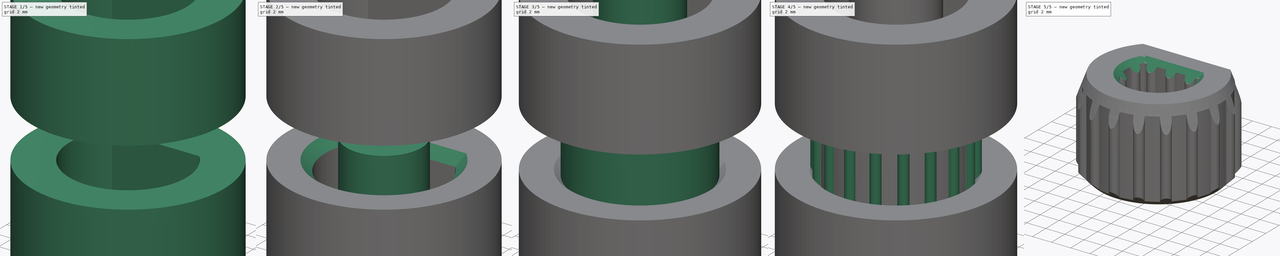
[diagram: build sequence overview — one tinted view per stage of 5, left to right]
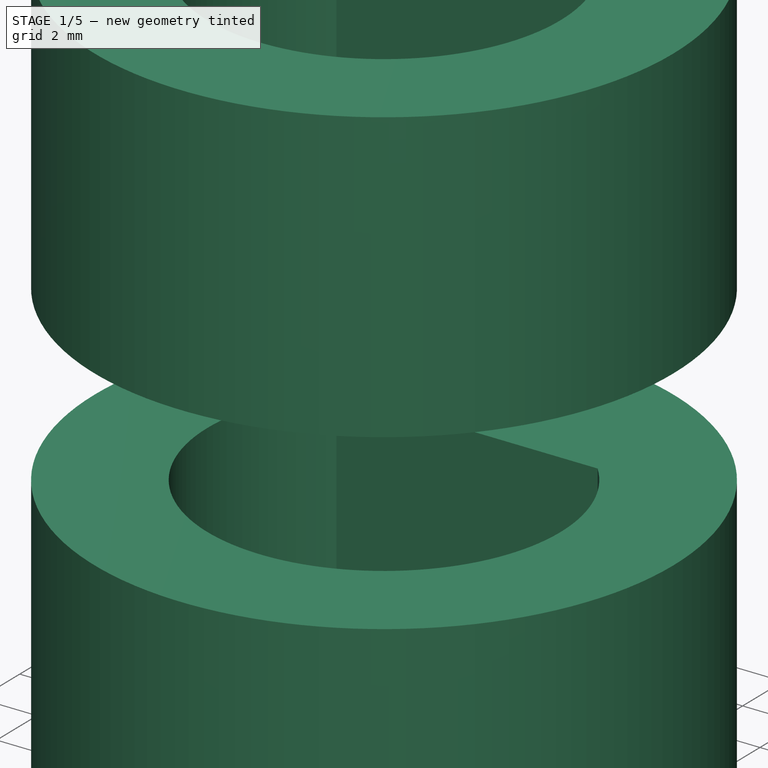
[diagram: stage 1 of 5 — iso view after this stage's code; geometry added in this stage tinted green]
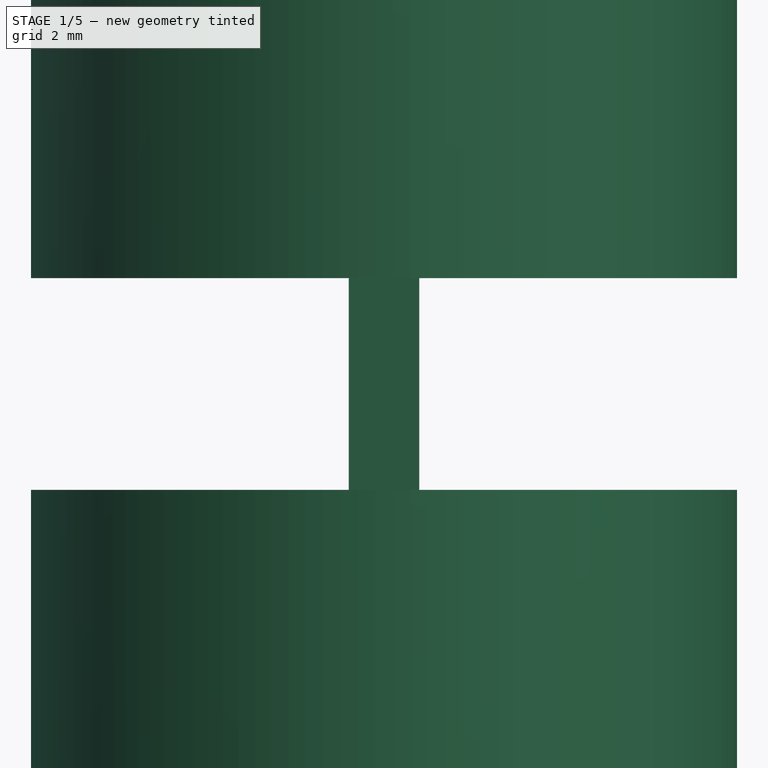
[diagram: stage 1 of 5 — front view after this stage's code; geometry added in this stage tinted green]
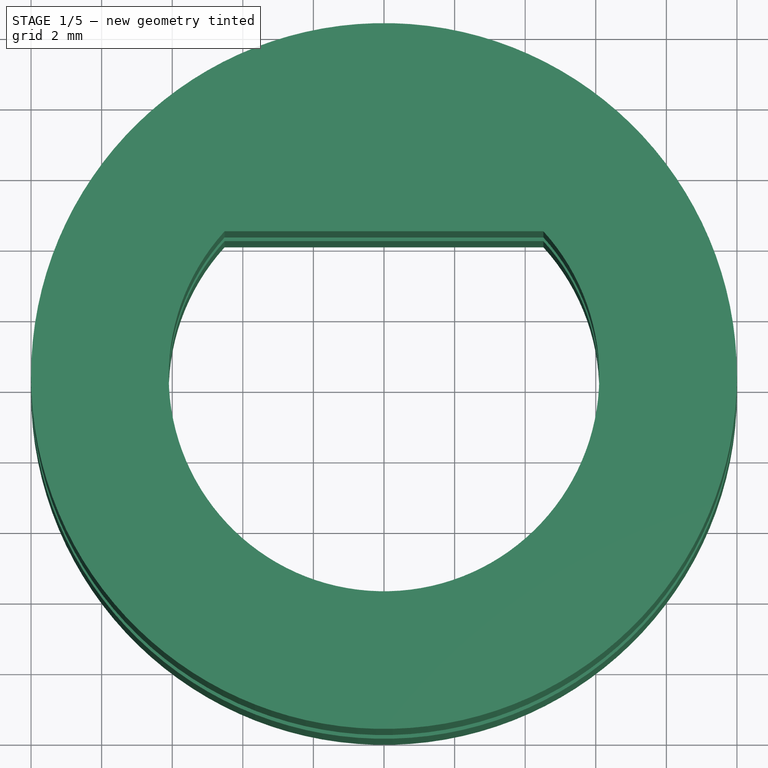
[diagram: stage 1 of 5 — top view after this stage's code; geometry added in this stage tinted green]
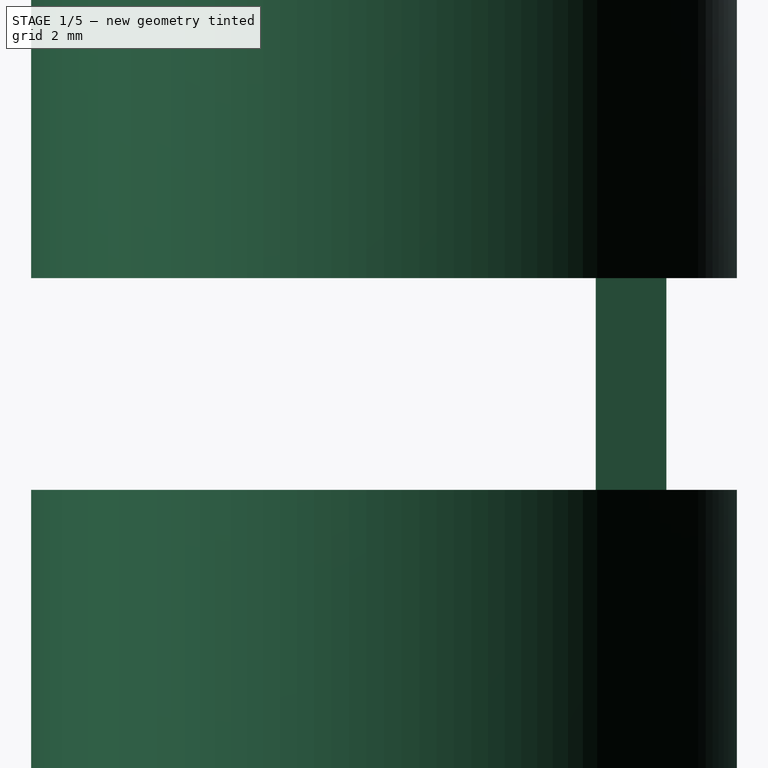
[diagram: stage 1 of 5 — right view after this stage's code; geometry added in this stage tinted green]
FCSTD DOCUMENT  (FreeCAD 1.0R39319 (Git))
Label: PLASTIC-TEK2-KNOB-INTERFACE
License: All rights reserved
LicenseURL: https://en.wikipedia.org/wiki/All_rights_reserved
objects: Sketcher::SketchObject×10, PartDesign::Pad×9, PartDesign::Plane×5, PartDesign::Chamfer×3, PartDesign::Body×3, PartDesign::CoordinateSystem×3, PartDesign::Boolean×2, PartDesign::Pocket×1
note: 74 computed .brp shape members not serialized (recipe doc carries the construction recipe); baked Part::Feature solids carry a one-line shape summary decoded from their .brp

FEATURE [PartDesign::Plane] DatumPlane002
  AttachmentOffset = pos=(0,0,2.25) rot=(0,0,1;0rad)
  AttachmentSupport = -> [XY_Plane002]
  Length = 60
  MapMode = 5
  Placement = pos=(0,0,2.25) rot=(0,0,1;0rad)
  ResizeMode = 0
  Width = 60
FEATURE [Sketcher::SketchObject] Sketch008
  ArcFitTolerance = 0
  AttachmentSupport = -> [DatumPlane002]
  FullyConstrained = true
  MakeInternals = false
  MapMode = 5
  Placement = pos=(0,0,2.25) rot=(0,0,1;0rad)
  sketch-geometry (3):
    g0: ArcOfCircle CenterX=0 CenterY=0 CenterZ=0 NormalX=0 NormalY=0 NormalZ=1 AngleXU=0 Radius=6.1 StartAngle=2.40451 EndAngle=7.02027
    g1: LineSegment StartX=-4.51664 StartY=4.1 StartZ=0 EndX=4.51664 EndY=4.1 EndZ=0
    g2: Circle CenterX=0 CenterY=0 CenterZ=0 NormalX=0 NormalY=0 NormalZ=1 AngleXU=0 Radius=10
  constraints (8):
    c: Coincident(g0,g-1)
    c: Horizontal(g1)
    c: Diameter(g0) = 12.2
    c: DistanceY(g-1,g1) = 4.1
    c: Coincident(g0,g1)
    c: Coincident(g0,g1)
    c: Coincident(g0,g2)
    c: Diameter(g2) = 20
FEATURE [PartDesign::Pad] Pad006
  Direction = (0,0,1)
  Length = 10
  Length2 = 10
  Placement = pos=(0,0,2.25) rot=(0,0,1;0rad)
  Profile = -> Sketch008
  ReferenceAxis = -> Sketch008 [N_Axis]
  Suppressed = false
  Type = 0
FEATURE [Sketcher::SketchObject] Sketch009
  ArcFitTolerance = 0
  AttachmentSupport = -> [YZ_Plane002]
  FullyConstrained = true
  MakeInternals = false
  MapMode = 5
  Placement = pos=(0,0,0) rot=(0.57735,0.57735,0.57735;2.0944rad)
  sketch-geometry (5):
    g0: LineSegment StartX=6 StartY=-5 StartZ=0 EndX=6 EndY=5 EndZ=0
    g1: LineSegment StartX=6 StartY=5 StartZ=0 EndX=8 EndY=5 EndZ=0
    g2: LineSegment StartX=8 StartY=5 StartZ=0 EndX=8 EndY=-5 EndZ=0
    g3: LineSegment StartX=8 StartY=-5 StartZ=0 EndX=6 EndY=-5 EndZ=0
    g4: GeomPoint [constr] X=7 Y=0 Z=0
  constraints (13):
    c: Coincident(g0,g1)
    c: Coincident(g1,g2)
    c: Coincident(g2,g3)
    c: Coincident(g3,g0)
    c: Horizontal(g1)
    c: Horizontal(g3)
    c: Vertical(g0)
    c: Vertical(g2)
    c: Symmetric(g1,g0,g4)
    c: PointOnObject(g4,g-1)
    c: DistanceY(g2,g2) = 10
    c: DistanceX(g1,g1) = 2
    c: DistanceX(g-1,g0) = 6
FEATURE [PartDesign::Pad] Pad007
  BaseFeature = -> Pad006
  Direction = (1,0,0)
  Length = 2
  Length2 = 10
  Midplane = true
  Placement = pos=(0,0,2.25) rot=(0,0,1;0rad)
  Profile = -> Sketch009
  ReferenceAxis = -> Sketch009 [N_Axis]
  Suppressed = false
  Type = 0
FEATURE [PartDesign::Plane] DatumPlane004
  AttachmentOffset = pos=(0,0,-3.75) rot=(0,0,1;0rad)
  AttachmentSupport = -> [XY_Plane002]
  Length = 60
  MapMode = 5
  Placement = pos=(0,0,-3.75) rot=(0,0,1;0rad)
  ResizeMode = 0
  Width = 60
FEATURE [Sketcher::SketchObject] Sketch012
  ArcFitTolerance = 0
  AttachmentSupport = -> [DatumPlane004]
  FullyConstrained = true
  MakeInternals = false
  MapMode = 5
  Placement = pos=(0,0,-3.75) rot=(0,0,1;0rad)
  sketch-geometry (3):
    g0: ArcOfCircle CenterX=0 CenterY=0 CenterZ=0 NormalX=0 NormalY=0 NormalZ=1 AngleXU=0 Radius=6.1 StartAngle=2.40451 EndAngle=7.02027
    g1: Circle CenterX=0 CenterY=0 CenterZ=0 NormalX=0 NormalY=0 NormalZ=1 AngleXU=0 Radius=10
    g2: LineSegment StartX=-4.51664 StartY=4.1 StartZ=0 EndX=4.51664 EndY=4.1 EndZ=0
  constraints (8):
    c: Coincident(g0,g-1)
    c: Coincident(g1,g0)
    c: Horizontal(g2)
    c: DistanceY(g0,g2) = 4.1
    c: Diameter(g0) = 12.2
    c: Diameter(g1) = 20
    c: Coincident(g0,g2)
    c: Coincident(g0,g2)
FEATURE [PartDesign::Pad] Pad009
  BaseFeature = -> Pad007
  Direction = (0,0,1)
  Length = 10
  Length2 = 10
  Placement = pos=(0,0,2.25) rot=(0,0,1;0rad)
  Profile = -> Sketch012
  ReferenceAxis = -> Sketch012 [N_Axis]
  Reversed = true
  Suppressed = false
  Type = 0
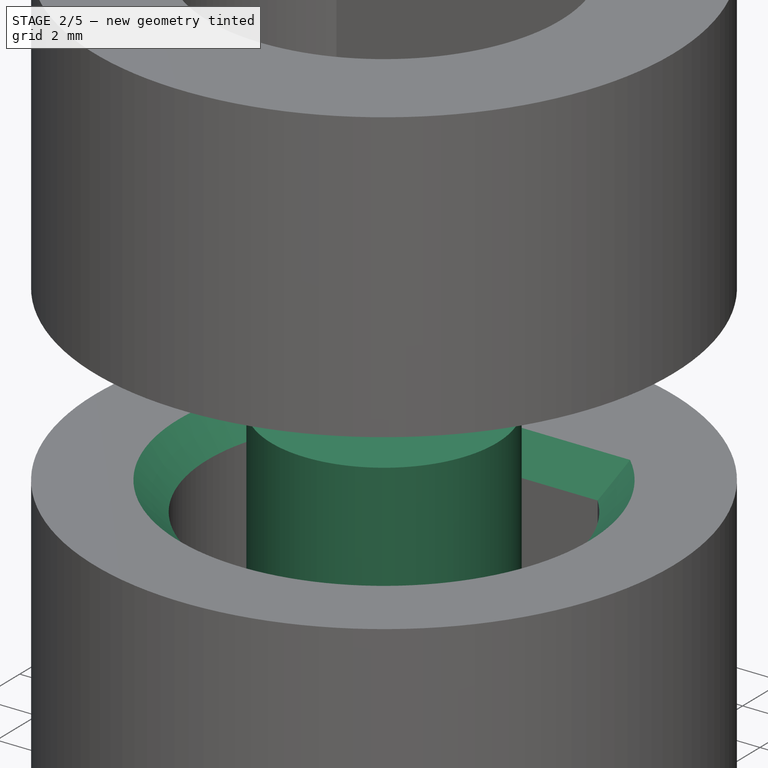
[diagram: stage 2 of 5 — iso view after this stage's code; geometry added in this stage tinted green]
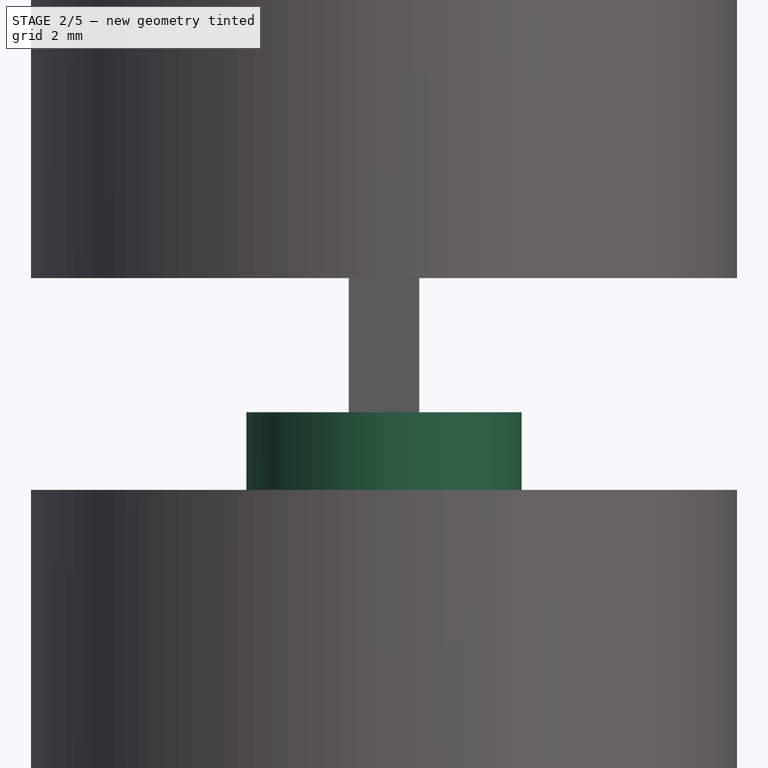
[diagram: stage 2 of 5 — front view after this stage's code; geometry added in this stage tinted green]
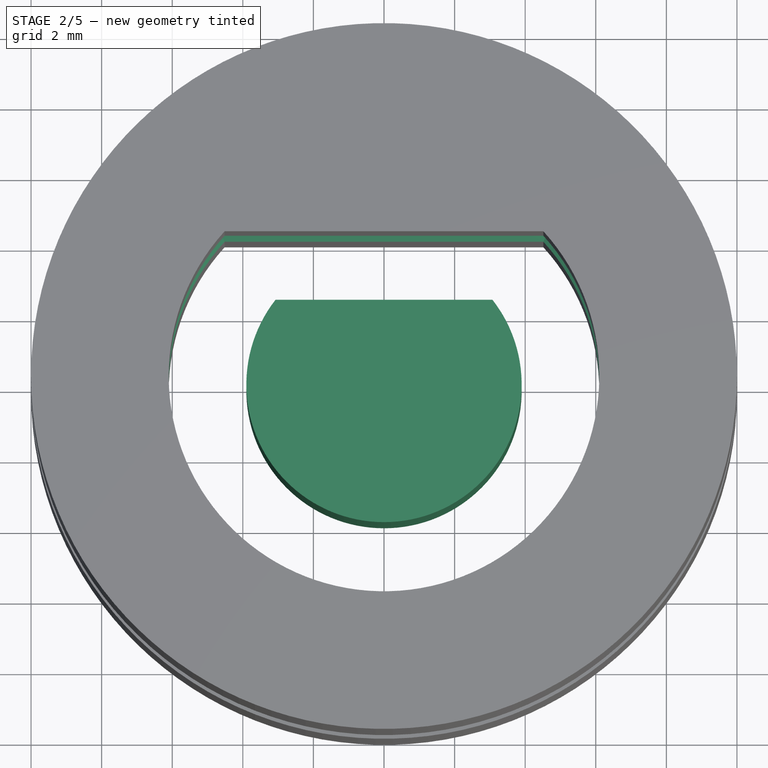
[diagram: stage 2 of 5 — top view after this stage's code; geometry added in this stage tinted green]
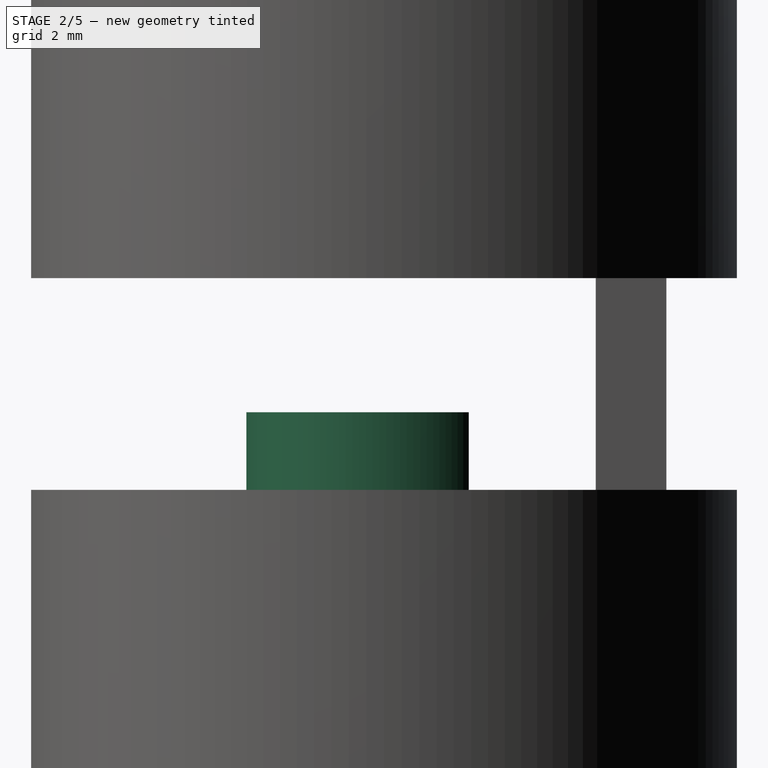
[diagram: stage 2 of 5 — right view after this stage's code; geometry added in this stage tinted green]
FEATURE [PartDesign::Plane] DatumPlane001
  AttachmentOffset = pos=(0,0,-4.75) rot=(0,0,1;0rad)
  AttachmentSupport = -> [XY_Plane]
  Length = 60
  MapMode = 5
  Placement = pos=(0,0,-4.75) rot=(0,0,1;0rad)
  ResizeMode = 0
  Width = 60
FEATURE [PartDesign::Plane] DatumPlane
  AttachmentOffset = pos=(0,0,-1.55) rot=(0,0,1;0rad)
  AttachmentSupport = -> [XY_Plane001]
  Length = 60
  MapMode = 5
  Placement = pos=(0,0,-1.55) rot=(0,0,1;0rad)
  ResizeMode = 0
  Width = 60
FEATURE [Sketcher::SketchObject] Sketch006
  ArcFitTolerance = 0
  AttachmentSupport = -> [DatumPlane]
  FullyConstrained = true
  MakeInternals = false
  MapMode = 5
  Placement = pos=(0,0,-1.55) rot=(0,0,1;0rad)
  sketch-geometry (2):
    g0: ArcOfCircle CenterX=0 CenterY=0 CenterZ=0 NormalX=0 NormalY=0 NormalZ=1 AngleXU=0 Radius=3.9 StartAngle=2.47872 EndAngle=6.94606
    g1: LineSegment StartX=-3.07409 StartY=2.4 StartZ=0 EndX=3.07409 EndY=2.4 EndZ=0
  constraints (6):
    c: Coincident(g0,g-1)
    c: Horizontal(g1)
    c: Diameter(g0) = 7.8
    c: DistanceY(g-1,g1) = 2.4
    c: Coincident(g0,g1)
    c: Coincident(g0,g1)
FEATURE [PartDesign::Pad] Pad004
  Direction = (0,0,1)
  Length = 10
  Length2 = 10
  Placement = pos=(0,0,-1.55) rot=(0,0,1;0rad)
  Profile = -> Sketch006
  ReferenceAxis = -> Sketch006 [N_Axis]
  Reversed = true
  Suppressed = false
  Type = 0
FEATURE [PartDesign::Chamfer] Chamfer001
  Angle = 45
  Base = -> Pad009 [Edge24,Edge23]
  BaseFeature = -> Pad009
  ChamferType = 0
  FlipDirection = false
  Placement = pos=(0,0,2.25) rot=(0,0,1;0rad)
  Size = 1
  Size2 = 1
  SupportTransform = false
  Suppressed = false
  UseAllEdges = false
FEATURE [PartDesign::Chamfer] Chamfer002
  Angle = 70
  Base = -> Chamfer001 [Edge27,Edge28]
  BaseFeature = -> Chamfer001
  ChamferType = 2
  FlipDirection = false
  Placement = pos=(0,0,2.25) rot=(0,0,1;0rad)
  Size = 1
  Size2 = 3
  SupportTransform = false
  Suppressed = false
  UseAllEdges = false
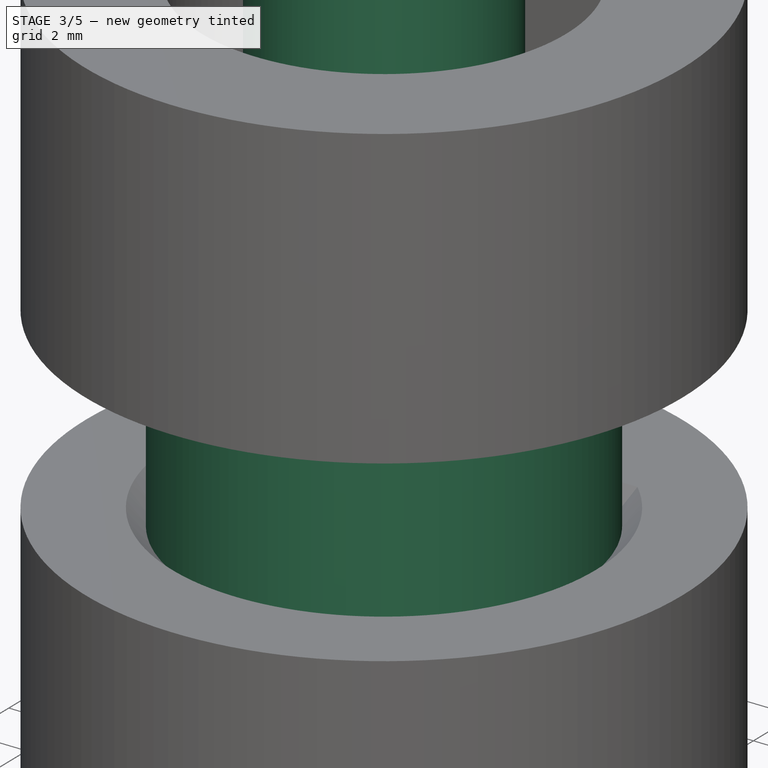
[diagram: stage 3 of 5 — iso view after this stage's code; geometry added in this stage tinted green]
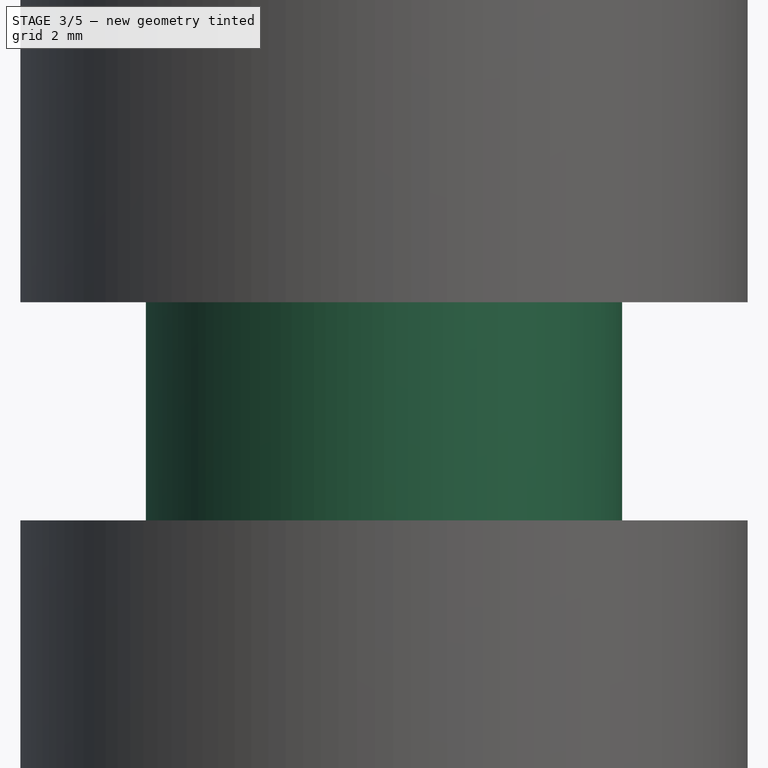
[diagram: stage 3 of 5 — front view after this stage's code; geometry added in this stage tinted green]
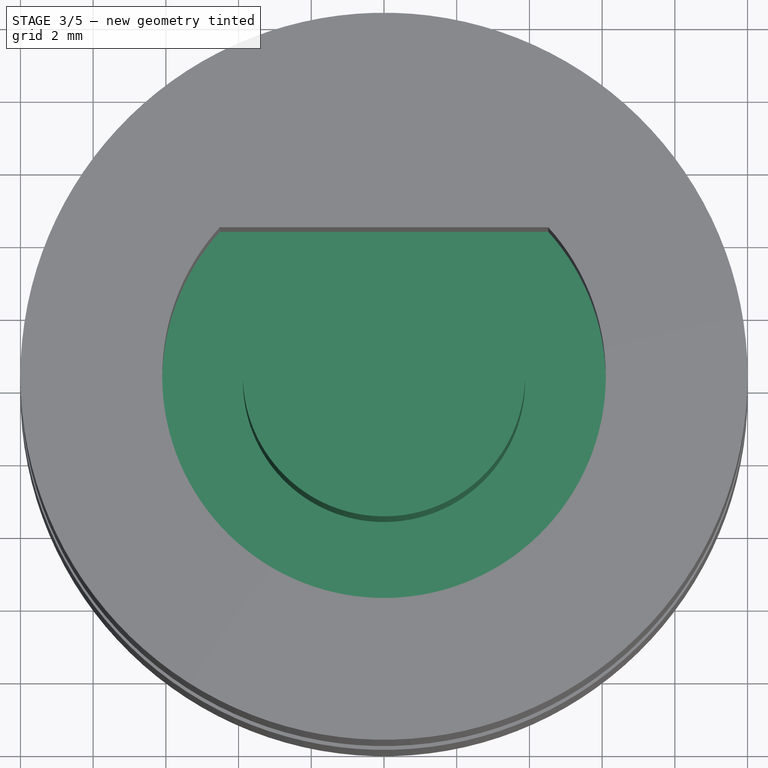
[diagram: stage 3 of 5 — top view after this stage's code; geometry added in this stage tinted green]
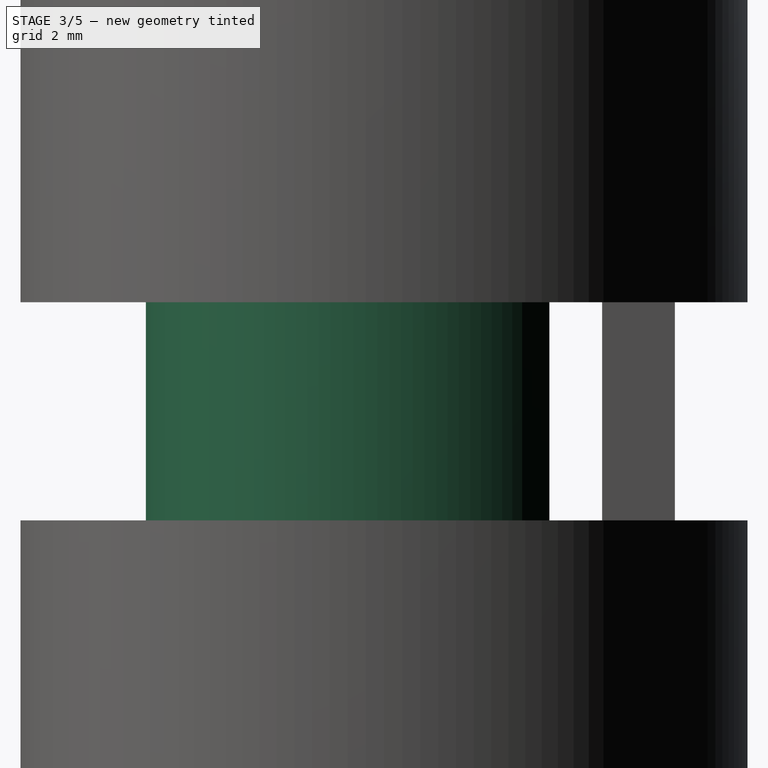
[diagram: stage 3 of 5 — right view after this stage's code; geometry added in this stage tinted green]
FEATURE [Sketcher::SketchObject] Sketch
  ArcFitTolerance = 0
  AttachmentSupport = -> [XY_Plane]
  FullyConstrained = true
  MakeInternals = false
  MapMode = 5
  sketch-geometry (5):
    g0: LineSegment StartX=-2.81957 StartY=1.9 StartZ=0 EndX=2.81957 EndY=1.9 EndZ=0
    g1: ArcOfCircle CenterX=0 CenterY=0 CenterZ=0 NormalX=0 NormalY=0 NormalZ=1 AngleXU=0 Radius=3.4 StartAngle=2.54863 EndAngle=6.87615
    g2: LineSegment StartX=-4.71169 StartY=4.55 StartZ=0 EndX=4.71169 EndY=4.55 EndZ=0
    g3: GeomPoint [constr] X=1e-16 Y=4.55 Z=0
    g4: ArcOfCircle CenterX=0 CenterY=0 CenterZ=0 NormalX=0 NormalY=0 NormalZ=1 AngleXU=0 Radius=6.55 StartAngle=2.37365 EndAngle=7.05113
  constraints (13):
    c: Diameter(g1) = 6.8
    c: Coincident(g0,g1)
    c: Coincident(g0,g1)
    c: Horizontal(g0)
    c: Horizontal(g2)
    c: Symmetric(g2,g2,g3)
    c: Diameter(g4) = 13.1
    c: Coincident(g4,g2)
    c: Coincident(g4,g2)
    c: Coincident(g4,g1)
    c: DistanceY(g1,g2) = 4.55
    c: Coincident(g1,g-1)
    c: DistanceY(g1,g0) = 1.9
FEATURE [PartDesign::Pad] Pad
  Direction = (0,0,1)
  Length = 9.5
  Length2 = 10
  Midplane = true
  Profile = -> Sketch
  ReferenceAxis = -> Sketch [N_Axis]
  Suppressed = false
  Type = 0
FEATURE [Sketcher::SketchObject] Sketch007
  ArcFitTolerance = 0
  AttachmentSupport = -> [YZ_Plane001]
  FullyConstrained = true
  MakeInternals = false
  MapMode = 5
  Placement = pos=(0,0,0) rot=(0.57735,0.57735,0.57735;2.0944rad)
  sketch-geometry (5):
    g0: LineSegment StartX=-1 StartY=-8 StartZ=0 EndX=-1 EndY=8 EndZ=0
    g1: LineSegment StartX=-1 StartY=8 StartZ=0 EndX=1 EndY=8 EndZ=0
    g2: LineSegment StartX=1 StartY=8 StartZ=0 EndX=1 EndY=-8 EndZ=0
    g3: LineSegment StartX=1 StartY=-8 StartZ=0 EndX=-1 EndY=-8 EndZ=0
    g4: GeomPoint [constr] X=0 Y=0 Z=0
  constraints (12):
    c: Coincident(g0,g1)
    c: Coincident(g1,g2)
    c: Coincident(g2,g3)
    c: Coincident(g3,g0)
    c: Horizontal(g1)
    c: Horizontal(g3)
    c: Vertical(g0)
    c: Vertical(g2)
    c: Symmetric(g1,g0,g4)
    c: Coincident(g4,g-1)
    c: DistanceY(g2,g2) = 16
    c: DistanceX(g1,g1) = 2
FEATURE [PartDesign::Pad] Pad005
  BaseFeature = -> Pad004
  Direction = (1,0,0)
  Length = 2
  Length2 = 10
  Midplane = true
  Placement = pos=(0,0,-1.55) rot=(0,0,1;0rad)
  Profile = -> Sketch007
  ReferenceAxis = -> Sketch007 [N_Axis]
  Suppressed = false
  Type = 0
FEATURE [PartDesign::Plane] DatumPlane003
  AttachmentOffset = pos=(0,0,3.75) rot=(0,0,1;0rad)
  AttachmentSupport = -> [XY_Plane001]
  Length = 60
  MapMode = 5
  Placement = pos=(0,0,3.75) rot=(0,0,1;0rad)
  ResizeMode = 0
  Width = 60
FEATURE [Sketcher::SketchObject] Sketch011
  ArcFitTolerance = 0
  AttachmentSupport = -> [DatumPlane003]
  FullyConstrained = true
  MakeInternals = false
  MapMode = 5
  Placement = pos=(0,0,3.75) rot=(0,0,1;0rad)
  sketch-geometry (2):
    g0: ArcOfCircle CenterX=0 CenterY=0 CenterZ=0 NormalX=0 NormalY=0 NormalZ=1 AngleXU=0 Radius=3.88 StartAngle=2.48123 EndAngle=6.94355
    g1: LineSegment StartX=-3.06431 StartY=2.38 StartZ=0 EndX=3.06431 EndY=2.38 EndZ=0
  constraints (6):
    c: Coincident(g0,g-1)
    c: Horizontal(g1)
    c: Coincident(g0,g1)
    c: Coincident(g0,g1)
    c: Diameter(g0) = 7.76
    c: DistanceY(g0,g0) = 2.38
FEATURE [PartDesign::Pad] Pad008
  BaseFeature = -> Pad005
  Direction = (0,0,1)
  Length = 10
  Length2 = 10
  Placement = pos=(0,0,-1.55) rot=(0,0,1;0rad)
  Profile = -> Sketch011
  ReferenceAxis = -> Sketch011 [N_Axis]
  Suppressed = false
  Type = 0
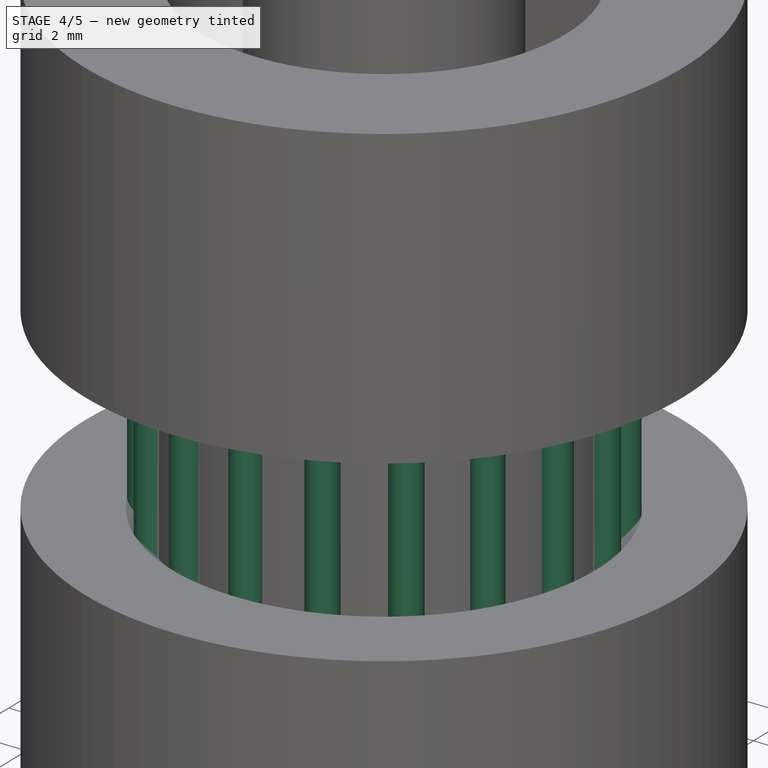
[diagram: stage 4 of 5 — iso view after this stage's code; geometry added in this stage tinted green]
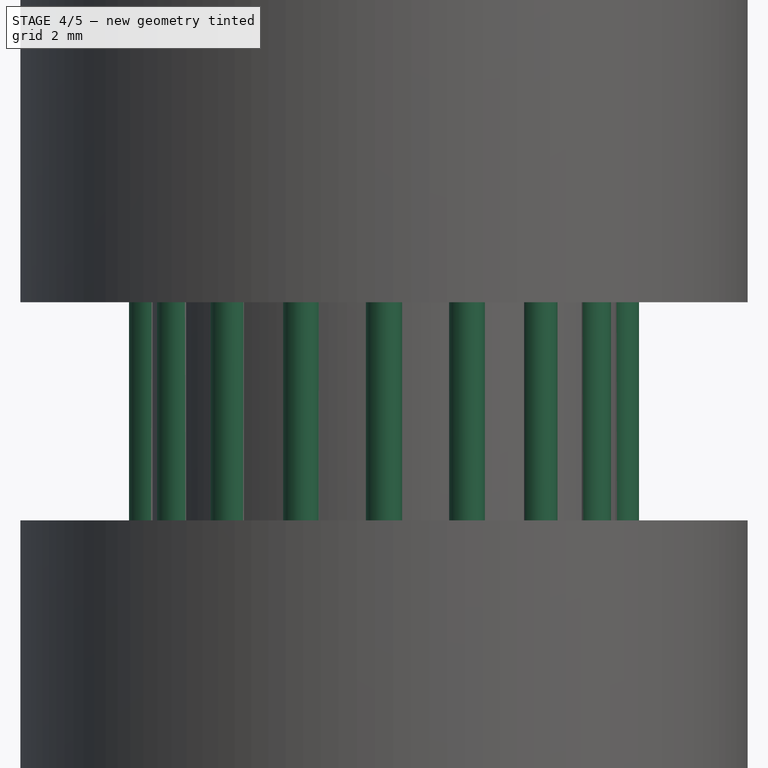
[diagram: stage 4 of 5 — front view after this stage's code; geometry added in this stage tinted green]
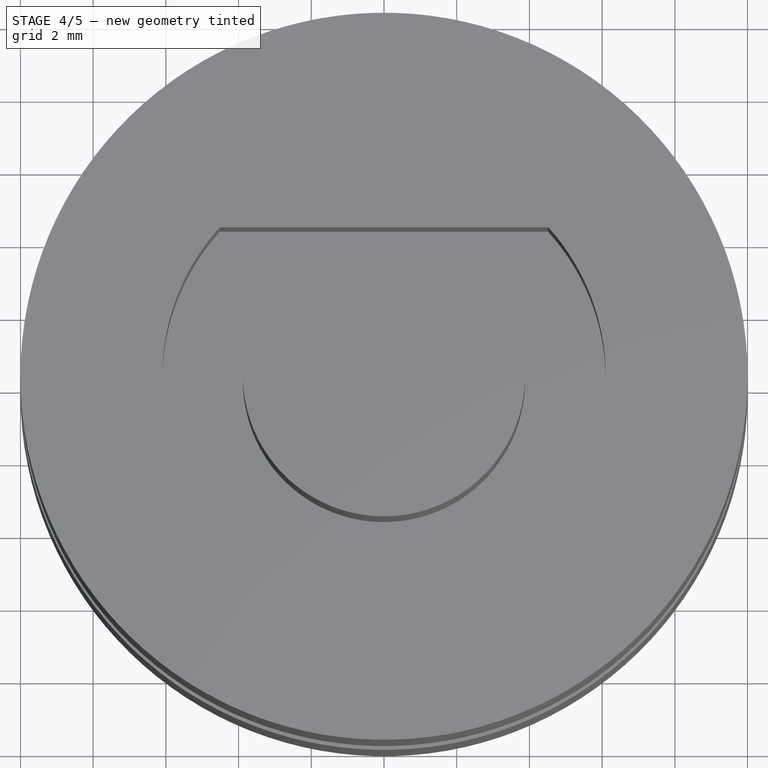
[diagram: stage 4 of 5 — top view after this stage's code; geometry added in this stage tinted green]
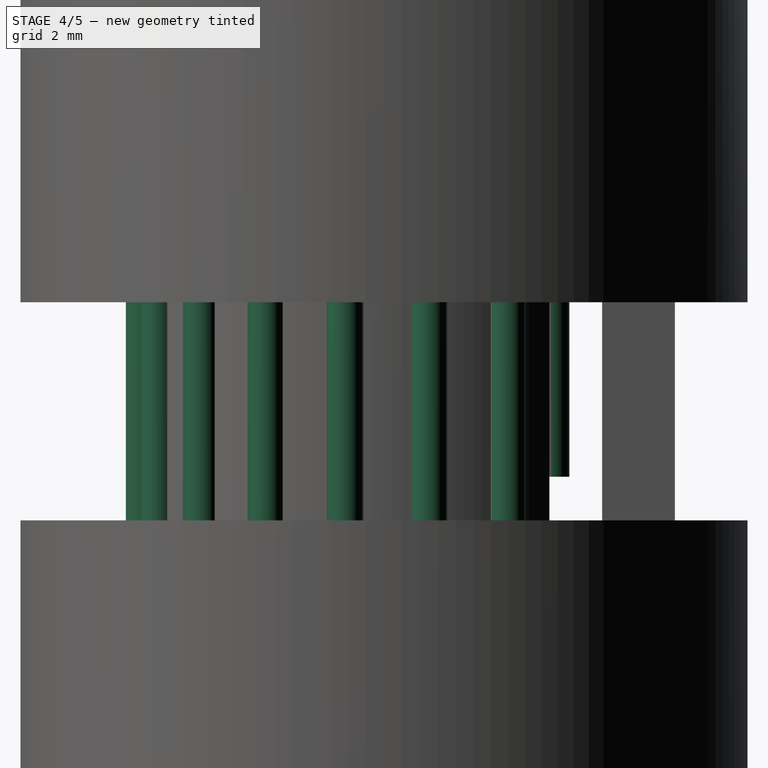
[diagram: stage 4 of 5 — right view after this stage's code; geometry added in this stage tinted green]
FEATURE [Sketcher::SketchObject] Sketch002
  ArcFitTolerance = 0
  AttachmentSupport = -> [XY_Plane]
  FullyConstrained = true
  MakeInternals = false
  MapMode = 5
  sketch-geometry (41):
    g0: ArcOfCircle [constr] CenterX=0 CenterY=0 CenterZ=0 NormalX=0 NormalY=0 NormalZ=1 AngleXU=0 Radius=6.6 StartAngle=2.37043 EndAngle=7.05435
    g1: Circle CenterX=-5.65685 CenterY=3.4 CenterZ=0 NormalX=0 NormalY=0 NormalZ=1 AngleXU=0 Radius=0.5
    g2: LineSegment [constr] StartX=-4.73286 StartY=4.6 StartZ=0 EndX=4.73286 EndY=4.6 EndZ=0
    g3: Circle CenterX=-6.48224 CenterY=1.2412 CenterZ=0 NormalX=0 NormalY=0 NormalZ=1 AngleXU=0 Radius=0.5
    g4: Circle CenterX=-6.51272 CenterY=-1.0698 CenterZ=0 NormalX=0 NormalY=0 NormalZ=1 AngleXU=0 Radius=0.5
    g5: Circle CenterX=-4.27196 CenterY=-5.03094 CenterZ=0 NormalX=0 NormalY=0 NormalZ=1 AngleXU=0 Radius=0.5
    g6: Circle CenterX=-2.2755 CenterY=-6.19533 CenterZ=0 NormalX=0 NormalY=0 NormalZ=1 AngleXU=0 Radius=0.5
    g7: Circle CenterX=-4e-16 CenterY=-6.6 CenterZ=0 NormalX=0 NormalY=0 NormalZ=1 AngleXU=0 Radius=0.5
    g8: Circle CenterX=5.65685 CenterY=3.4 CenterZ=0 NormalX=0 NormalY=0 NormalZ=1 AngleXU=0 Radius=0.5
    g9: Circle CenterX=-5.74456 CenterY=-3.24962 CenterZ=0 NormalX=0 NormalY=0 NormalZ=1 AngleXU=0 Radius=0.5
    g10: Circle CenterX=6.48224 CenterY=1.2412 CenterZ=0 NormalX=0 NormalY=0 NormalZ=1 AngleXU=0 Radius=0.5
    g11: Circle CenterX=4.27196 CenterY=-5.03094 CenterZ=0 NormalX=0 NormalY=0 NormalZ=1 AngleXU=0 Radius=0.5
    g12: Circle CenterX=5.74456 CenterY=-3.24962 CenterZ=0 NormalX=0 NormalY=0 NormalZ=1 AngleXU=0 Radius=0.5
    g13: Circle CenterX=2.2755 CenterY=-6.19533 CenterZ=0 NormalX=0 NormalY=0 NormalZ=1 AngleXU=0 Radius=0.5
    g14: Circle CenterX=6.51272 CenterY=-1.0698 CenterZ=0 NormalX=0 NormalY=0 NormalZ=1 AngleXU=0 Radius=0.5
    g15: LineSegment [constr] StartX=-5.65685 StartY=3.4 StartZ=0 EndX=-6.48224 EndY=1.2412 EndZ=0
    g16: LineSegment [constr] StartX=-6.48224 StartY=1.2412 StartZ=0 EndX=-6.51272 EndY=-1.0698 EndZ=0
    g17: LineSegment [constr] StartX=-6.51272 StartY=-1.0698 StartZ=0 EndX=-5.74456 EndY=-3.24962 EndZ=0
    g18: LineSegment [constr] StartX=-5.74456 StartY=-3.24962 StartZ=0 EndX=-4.27196 EndY=-5.03094 EndZ=0
    g19: LineSegment [constr] StartX=-4.27196 StartY=-5.03094 StartZ=0 EndX=-2.2755 EndY=-6.19533 EndZ=0
    g20: LineSegment [constr] StartX=-2.2755 StartY=-6.19533 StartZ=0 EndX=-4e-16 EndY=-6.6 EndZ=0
    g21: LineSegment [constr] StartX=-4e-16 StartY=-6.6 StartZ=0 EndX=2.2755 EndY=-6.19533 EndZ=0
    g22: LineSegment [constr] StartX=2.2755 StartY=-6.19533 StartZ=0 EndX=4.27196 EndY=-5.03094 EndZ=0
    g23: LineSegment [constr] StartX=4.27196 StartY=-5.03094 StartZ=0 EndX=5.74456 EndY=-3.24962 EndZ=0
    g24: LineSegment [constr] StartX=5.74456 StartY=-3.24962 StartZ=0 EndX=6.51272 EndY=-1.0698 EndZ=0
    g25: LineSegment [constr] StartX=6.51272 StartY=-1.0698 StartZ=0 EndX=6.48224 EndY=1.2412 EndZ=0
    g26: LineSegment [constr] StartX=6.48224 StartY=1.2412 StartZ=0 EndX=5.65685 EndY=3.4 EndZ=0
    g27: Circle CenterX=-3.45 CenterY=4.6 CenterZ=0 NormalX=0 NormalY=0 NormalZ=1 AngleXU=0 Radius=0.5
    g28: Circle CenterX=-1.15 CenterY=4.6 CenterZ=0 NormalX=0 NormalY=0 NormalZ=1 AngleXU=0 Radius=0.5
    g29: LineSegment [constr] StartX=-3.45 StartY=4.6 StartZ=0 EndX=-1.15 EndY=4.6 EndZ=0
    g30: Circle CenterX=1.15 CenterY=4.6 CenterZ=0 NormalX=0 NormalY=0 NormalZ=1 AngleXU=0 Radius=0.5
    g31: LineSegment [constr] StartX=-1.15 StartY=4.6 StartZ=0 EndX=1.15 EndY=4.6 EndZ=0
    g32: Circle CenterX=3.45 CenterY=4.6 CenterZ=0 NormalX=0 NormalY=0 NormalZ=1 AngleXU=0 Radius=0.5
    g33: LineSegment [constr] StartX=1.15 StartY=4.6 StartZ=0 EndX=3.45 EndY=4.6 EndZ=0
    g34: GeomPoint [constr] X=0 Y=4.6 Z=0
    g35: LineSegment [constr] StartX=-4.93964 StartY=5.1 StartZ=0 EndX=4.93964 EndY=5.1 EndZ=0
    g36: ArcOfCircle [constr] CenterX=0 CenterY=0 CenterZ=0 NormalX=0 NormalY=0 NormalZ=1 AngleXU=0 Radius=7.1 StartAngle=2.34022 EndAngle=7.08456
    g37: GeomPoint [constr] X=0 Y=-7.1 Z=0
    g38: ArcOfCircle [constr] CenterX=0 CenterY=0 CenterZ=0 NormalX=0 NormalY=0 NormalZ=1 AngleXU=0 Radius=7 StartAngle=2.32536 EndAngle=7.09942
    g39: LineSegment [constr] StartX=-4.89898 StartY=5 StartZ=0 EndX=4.89898 EndY=5 EndZ=0
    g40: GeomPoint [constr] X=0 Y=-7 Z=0
  constraints (112):
    c: Coincident(g0,g-1)
    c: Diameter(g0) = 13.2
    c: PointOnObject(g1,g0)
    c: Diameter(g1) = 1
    c: Horizontal(g2)
    c: DistanceY(g0,g2) = 4.6
    c: Coincident(g0,g2)
    c: Coincident(g0,g2)
    c: DistanceY(g1,g0) = 1.2
    c: PointOnObject(g4,g0)
    c: PointOnObject(g5,g0)
    c: PointOnObject(g6,g0)
    c: PointOnObject(g7,g0)
    c: PointOnObject(g3,g0)
    c: PointOnObject(g9,g0)
    c: Equal(g1,g3)
    c: Equal(g3,g4)
    c: Equal(g4,g9)
    c: Equal(g9,g5)
    c: Equal(g5,g6)
    c: Equal(g6,g7)
    c: Equal(g7,g11)
    c: Equal(g11,g12)
    c: Equal(g12,g13)
    c: Equal(g13,g10)
    c: Equal(g10,g8)
    c: PointOnObject(g11,g0)
    c: PointOnObject(g12,g0)
    c: PointOnObject(g13,g0)
    c: PointOnObject(g14,g0)
    c: Coincident(g15,g1)
    c: Coincident(g16,g15)
    c: Coincident(g16,g4)
    c: Coincident(g17,g16)
    c: Coincident(g18,g17)
    c: Coincident(g18,g5)
    c: Coincident(g19,g18)
    c: Coincident(g20,g19)
    c: Coincident(g20,g7)
    c: Coincident(g21,g20)
    c: Coincident(g22,g21)
    c: Coincident(g22,g11)
    c: Coincident(g23,g22)
    c: Coincident(g24,g23)
    c: Coincident(g24,g14)
    c: Coincident(g25,g24)
    c: Coincident(g25,g10)
    c: Coincident(g26,g25)
    c: Coincident(g26,g8)
    c: Coincident(g15,g3)
    c: Coincident(g17,g9)
    c: Coincident(g19,g6)
    c: Coincident(g21,g13)
    c: Coincident(g23,g12)
    c: PointOnObject(g25,g0)
    c: PointOnObject(g26,g0)
    c: Equal(g15,g16)
    c: Equal(g16,g17)
    c: Equal(g17,g18)
    c: Equal(g18,g19)
    c: Equal(g19,g20)
    c: Equal(g20,g21)
    c: Equal(g21,g22)
    c: Equal(g22,g23)
    c: Equal(g23,g24)
    c: Equal(g24,g25)
    c: Equal(g25,g26)
    c: Horizontal(g8,g1)
    c: Equal(g14,g1)
    c: PointOnObject(g27,g2)
    c: Equal(g27,g1)
    c: Coincident(g27,g29)
    c: Coincident(g28,g29)
    c: Distance(g29) = 2.3
    c: Coincident(g28,g31)
    c: Coincident(g30,g31)
    c: Equal(g29,g31)
    c: Parallel(g31,g29)
    c: Coincident(g30,g33)
    c: Coincident(g32,g33)
    c: Equal(g29,g33)
    c: Parallel(g33,g29)
    c: PointOnObject(g34,g-2)
    c: Symmetric(g28,g30,g34)
    c: Equal(g27,g28)
    c: Equal(g28,g30)
    c: Equal(g30,g32)
    c: Horizontal(g33)
    c: Horizontal(g35)
    c: Coincident(g36,g0)
    c: Tangent(g36,g7)
    c: Coincident(g35,g36)
    c: Coincident(g35,g36)
    c: Tangent(g35,g30)
    c: DistanceY(g0,g35) = 5.1
    c: Diameter(g36) = 14.2
    c: PointOnObject(g37,g36)
    c: PointOnObject(g37,g-2)
    c: DistanceY(g37,g35) = 12.2
    c: PointOnObject(g38,g-1)
    c: Diameter(g38) = 14
    c: PointOnObject(g39,g38)
    c: PointOnObject(g39,g38)
    c: Horizontal(g39)
    c: PointOnObject(g38,g-2)
    c: DistanceY(g38,g39) = 5
    c: PointOnObject(g38,g35)
    c: PointOnObject(g38,g35)
    c: DistanceY(g39,g38) = 0.1
    c: PointOnObject(g40,g38)
    c: PointOnObject(g40,g-2)
    c: DistanceY(g37,g40) = 0.1
FEATURE [PartDesign::Pad] Pad002
  BaseFeature = -> Pad
  Direction = (0,0,1)
  Length = 9.5
  Length2 = 10
  Midplane = true
  Profile = -> Sketch002
  ReferenceAxis = -> Sketch002 [N_Axis]
  Refine = true
  Suppressed = false
  Type = 0
FEATURE [Sketcher::SketchObject] Sketch003
  ArcFitTolerance = 0
  AttachmentSupport = -> [XY_Plane]
  FullyConstrained = true
  MakeInternals = false
  MapMode = 5
  sketch-geometry (26):
    g0: ArcOfCircle [constr] CenterX=0 CenterY=0 CenterZ=0 NormalX=0 NormalY=0 NormalZ=1 AngleXU=0 Radius=3.4 StartAngle=2.54863 EndAngle=6.87615
    g1: LineSegment [constr] StartX=-2.81957 StartY=1.9 StartZ=0 EndX=2.81957 EndY=1.9 EndZ=0
    g2: Circle CenterX=-2 CenterY=1.9 CenterZ=0 NormalX=0 NormalY=0 NormalZ=1 AngleXU=0 Radius=0.5
    g3: Circle CenterX=0 CenterY=1.9 CenterZ=0 NormalX=0 NormalY=0 NormalZ=1 AngleXU=0 Radius=0.5
    g4: LineSegment [constr] StartX=-2 StartY=1.9 StartZ=0 EndX=0 EndY=1.9 EndZ=0
    g5: Circle CenterX=2 CenterY=1.9 CenterZ=0 NormalX=0 NormalY=0 NormalZ=1 AngleXU=0 Radius=0.5
    g6: LineSegment [constr] StartX=0 StartY=1.9 StartZ=0 EndX=2 EndY=1.9 EndZ=0
    g7: Circle CenterX=-3.24962 CenterY=1 CenterZ=0 NormalX=0 NormalY=0 NormalZ=1 AngleXU=0 Radius=0.5
    g8: Circle CenterX=-3.22247 CenterY=-1.08429 CenterZ=0 NormalX=0 NormalY=0 NormalZ=1 AngleXU=0 Radius=0.5
    g9: Circle CenterX=-1.98411 CenterY=-2.76103 CenterZ=0 NormalX=0 NormalY=0 NormalZ=1 AngleXU=0 Radius=0.5
    g10: Circle CenterX=0 CenterY=-3.4 CenterZ=0 NormalX=0 NormalY=0 NormalZ=1 AngleXU=0 Radius=0.5
    g11: Circle CenterX=1.98411 CenterY=-2.76103 CenterZ=0 NormalX=0 NormalY=0 NormalZ=1 AngleXU=0 Radius=0.5
    g12: Circle CenterX=3.22247 CenterY=-1.08429 CenterZ=0 NormalX=0 NormalY=0 NormalZ=1 AngleXU=0 Radius=0.5
    g13: Circle CenterX=3.24962 CenterY=1 CenterZ=0 NormalX=0 NormalY=0 NormalZ=1 AngleXU=0 Radius=0.5
    g14: LineSegment [constr] StartX=-3.24962 StartY=1 StartZ=0 EndX=-3.22247 EndY=-1.08429 EndZ=0
    g15: LineSegment [constr] StartX=-3.22247 StartY=-1.08429 StartZ=0 EndX=-1.98411 EndY=-2.76103 EndZ=0
    g16: LineSegment [constr] StartX=-1.98411 StartY=-2.76103 StartZ=0 EndX=0 EndY=-3.4 EndZ=0
    g17: LineSegment [constr] StartX=0 StartY=-3.4 StartZ=0 EndX=1.98411 EndY=-2.76103 EndZ=0
    g18: LineSegment [constr] StartX=1.98411 StartY=-2.76103 StartZ=0 EndX=3.22247 EndY=-1.08429 EndZ=0
    g19: LineSegment [constr] StartX=3.22247 StartY=-1.08429 StartZ=0 EndX=3.24962 EndY=1 EndZ=0
    g20: LineSegment [constr] StartX=-2.53969 StartY=1.4 StartZ=0 EndX=2.53969 EndY=1.4 EndZ=0
    g21: ArcOfCircle [constr] CenterX=0 CenterY=0 CenterZ=0 NormalX=0 NormalY=0 NormalZ=1 AngleXU=0 Radius=2.9 StartAngle=2.63779 EndAngle=6.78699
    g22: ArcOfCircle [constr] CenterX=0 CenterY=0 CenterZ=0 NormalX=0 NormalY=0 NormalZ=1 AngleXU=0 Radius=3 StartAngle=2.61799 EndAngle=6.80678
    g23: LineSegment [constr] StartX=-2.59808 StartY=1.5 StartZ=0 EndX=2.59808 EndY=1.5 EndZ=0
    g24: GeomPoint [constr] X=0 Y=-3 Z=0
    g25: GeomPoint [constr] X=0 Y=-2.9 Z=0
  constraints (73):
    c: Coincident(g0,g-1)
    c: Diameter(g0) = 6.8
    c: Horizontal(g1)
    c: DistanceY(g0,g1) = 1.9
    c: Coincident(g0,g1)
    c: Coincident(g0,g1)
    c: PointOnObject(g2,g1)
    c: Diameter(g2) = 1
    c: Equal(g2,g3) = 1
    c: Coincident(g2,g4)
    c: Coincident(g3,g4)
    c: Distance(g4) = 2
    c: Angle(g4) = 0
    c: Equal(g2,g5) = 1
    c: Coincident(g3,g6)
    c: Coincident(g5,g6)
    c: Equal(g4,g6)
    c: Parallel(g6,g4)
    c: PointOnObject(g3,g-2)
    c: PointOnObject(g7,g0)
    c: PointOnObject(g8,g0)
    c: Equal(g2,g7)
    c: Equal(g7,g8)
    c: Equal(g8,g9)
    c: Equal(g9,g10)
    c: Equal(g10,g11)
    c: Equal(g11,g12)
    c: Equal(g12,g13)
    c: PointOnObject(g9,g0)
    c: PointOnObject(g10,g0)
    c: PointOnObject(g11,g0)
    c: PointOnObject(g12,g0)
    c: PointOnObject(g13,g0)
    c: Coincident(g14,g7)
    c: Coincident(g14,g8)
    c: Coincident(g15,g8)
    c: Coincident(g15,g9)
    c: Coincident(g16,g9)
    c: Coincident(g16,g10)
    c: Coincident(g17,g10)
    c: Coincident(g17,g11)
    c: Coincident(g18,g11)
    c: Coincident(g18,g12)
    c: Coincident(g19,g12)
    c: Coincident(g19,g13)
    c: Equal(g16,g15)
    c: Equal(g15,g14)
    c: Equal(g14,g17)
    c: Equal(g17,g18)
    c: Equal(g18,g19)
    c: DistanceY(g7,g0) = 0.9
    c: Horizontal(g13,g7)
    c: Horizontal(g20)
    c: Tangent(g20,g3)
    c: Coincident(g21,g20)
    c: Diameter(g21) = 5.8
    c: DistanceY(g0,g20) = 1.4
    c: Coincident(g21,g20)
    c: Tangent(g21,g10)
    c: Coincident(g0,g21)
    c: Coincident(g22,g0)
    c: Diameter(g22) = 6
    c: Horizontal(g23)
    c: PointOnObject(g24,g22)
    c: PointOnObject(g24,g-2)
    c: DistanceY(g24,g23) = 4.5
    c: DistanceY(g22,g23) = 1.5
    c: Coincident(g22,g23)
    c: Coincident(g22,g23)
    c: DistanceY(g20,g22) = 0.1
    c: PointOnObject(g25,g21)
    c: PointOnObject(g25,g-2)
    c: DistanceY(g24,g25) = 0.1
FEATURE [PartDesign::Pad] Pad003
  BaseFeature = -> Pad002
  Direction = (0,0,1)
  Length = 9.5
  Length2 = 10
  Midplane = true
  Profile = -> Sketch003
  ReferenceAxis = -> Sketch003 [N_Axis]
  Refine = true
  Suppressed = false
  Type = 0
FEATURE [Sketcher::SketchObject] Sketch010
  ArcFitTolerance = 0
  AttachmentSupport = -> [DatumPlane001]
  FullyConstrained = true
  MakeInternals = false
  MapMode = 5
  Placement = pos=(0,0,-4.75) rot=(0,0,1;0rad)
  sketch-geometry (4):
    g0: ArcOfCircle CenterX=0 CenterY=0 CenterZ=0 NormalX=0 NormalY=0 NormalZ=1 AngleXU=0 Radius=5 StartAngle=2.49809 EndAngle=6.92669
    g1: LineSegment StartX=-4 StartY=3 StartZ=0 EndX=-4 EndY=5.5 EndZ=0
    g2: LineSegment StartX=-4 StartY=5.5 StartZ=0 EndX=4 EndY=5.5 EndZ=0
    g3: LineSegment StartX=4 StartY=5.5 StartZ=0 EndX=4 EndY=3 EndZ=0
  constraints (11):
    c: Coincident(g0,g-1)
    c: Diameter(g0) = 10
    c: Coincident(g2,g1)
    c: Coincident(g3,g2)
    c: Vertical(g3)
    c: Vertical(g1)
    c: Symmetric(g1,g2,g-2)
    c: DistanceX(g2,g2) = 8
    c: DistanceY(g3,g3) = 2.5
    c: Coincident(g0,g3)
    c: Coincident(g0,g1)
FEATURE [PartDesign::Pocket] Pocket
  BaseFeature = -> Pad003
  Direction = (0,0,-1)
  Length = 2.2
  Length2 = 5
  Profile = -> Sketch010
  ReferenceAxis = -> Sketch010 [N_Axis]
  Reversed = true
  Suppressed = false
  Type = 0
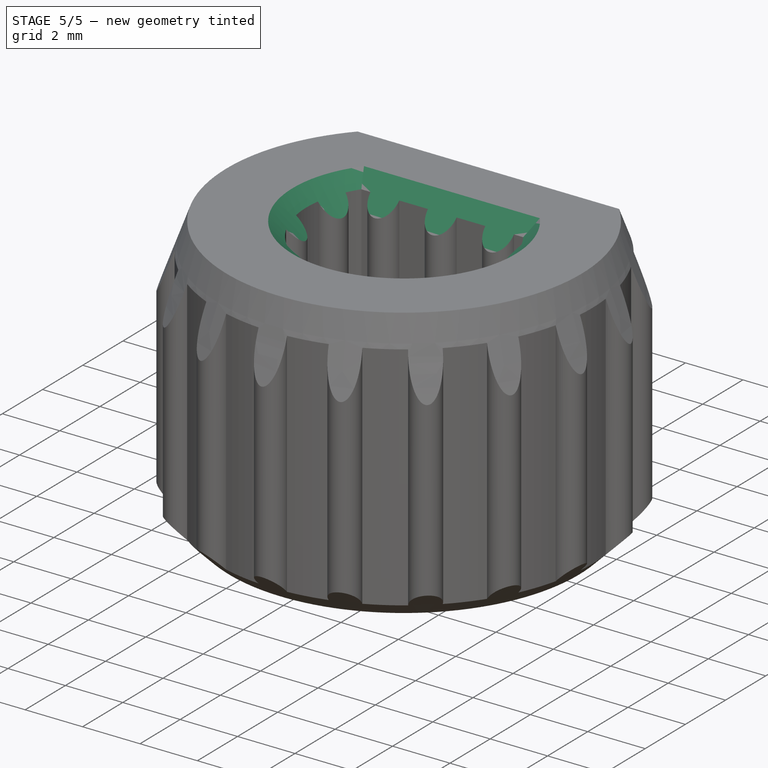
[diagram: stage 5 of 5 — iso view after this stage's code; geometry added in this stage tinted green]
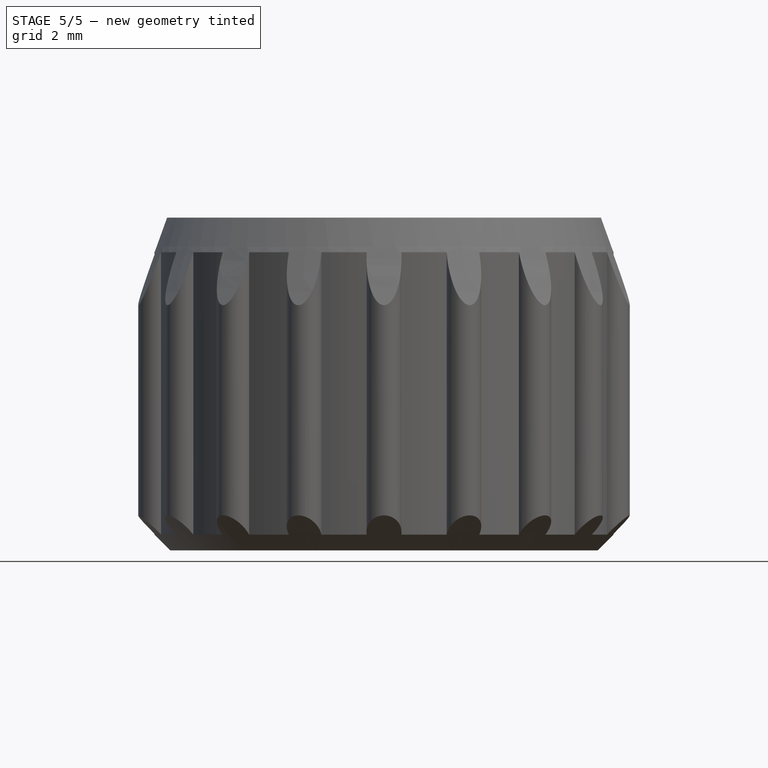
[diagram: stage 5 of 5 — front view after this stage's code; geometry added in this stage tinted green]
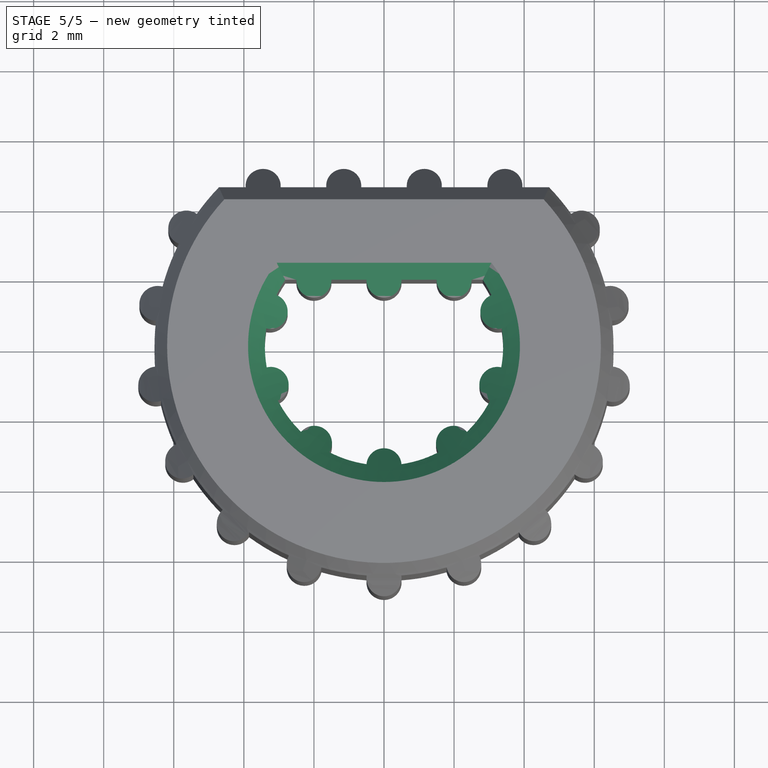
[diagram: stage 5 of 5 — top view after this stage's code; geometry added in this stage tinted green]
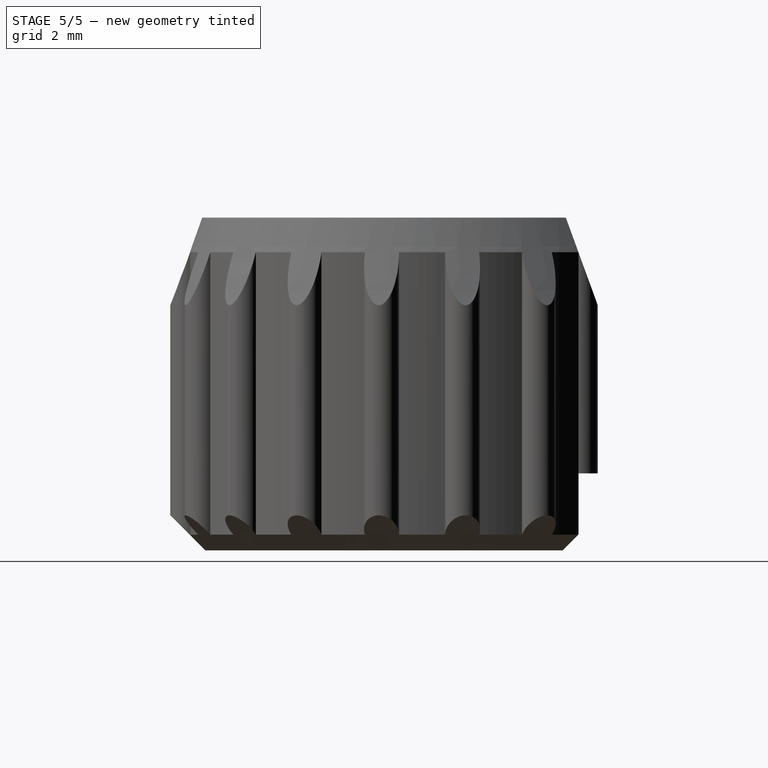
[diagram: stage 5 of 5 — right view after this stage's code; geometry added in this stage tinted green]
FEATURE [PartDesign::Chamfer] Chamfer
  Angle = 45
  Base = -> Pad008 [Edge19,Edge20,Edge3,Edge5]
  BaseFeature = -> Pad008
  ChamferType = 0
  FlipDirection = false
  Placement = pos=(0,0,-1.55) rot=(0,0,1;0rad)
  Size = 1
  Size2 = 1
  SupportTransform = false
  Suppressed = false
  UseAllEdges = false
FEATURE [PartDesign::Body] Body001
  AllowCompound = false
  Group = -> [DatumPlane,Sketch006,Pad004,Sketch007,Pad005,DatumPlane003,Sketch011,Pad008,Chamfer]
  Origin = -> Origin001
  Tip = -> Chamfer
FEATURE [PartDesign::Boolean] Boolean
  BaseFeature = -> Pocket
  Group = -> [Body001]
  Suppressed = false
  Type = 1
  UsePlacement = false
FEATURE [PartDesign::Body] Body002
  AllowCompound = false
  Group = -> [DatumPlane002,Sketch008,Pad006,Sketch009,Pad007,DatumPlane004,Sketch012,Pad009,Chamfer001,Chamfer002]
  Origin = -> Origin002
  Tip = -> Chamfer002
FEATURE [PartDesign::Boolean] Boolean001
  BaseFeature = -> Boolean
  Group = -> [Body002]
  Suppressed = false
  Type = 1
  UsePlacement = false
FEATURE [PartDesign::CoordinateSystem] LCS_1
  AttacherType = Attacher::AttachEngine3D
  AttachmentOffset = pos=(0,0,0) rot=(0,0,-1;2.47837rad)
  AttachmentSupport = -> [Boolean001]
  MapMode = 11
  Placement = pos=(-4e-16,0,4.75) rot=(0,0,1;1.57366rad)
FEATURE [PartDesign::CoordinateSystem] LCS_2
  AttacherType = Attacher::AttachEngine3D
  AttachmentOffset = pos=(0,0,0) rot=(0,0,-1;2.47837rad)
  AttachmentSupport = -> [Boolean001]
  MapMode = 11
  Placement = pos=(-4e-16,0,-2.55) rot=(0,0,1;1.57115rad)
FEATURE [PartDesign::CoordinateSystem] LCS_3
  AttacherType = Attacher::AttachEngine3D
  AttachmentSupport = -> [Boolean001]
  MapMode = 5
  Placement = pos=(0,0,-4.75) rot=(1,0,0;3.14159rad)
FEATURE [PartDesign::Body] Body  label="PLASTIC-TEK2-KNOB-INTERFACE"
  AllowCompound = false
  Group = -> [Sketch,Pad,Pad002,Sketch002,Sketch003,Pad003,DatumPlane001,Pocket,Sketch010,Boolean,Boolean001,LCS_1,LCS_2,LCS_3]
  Origin = -> Origin
  Tip = -> Boolean001
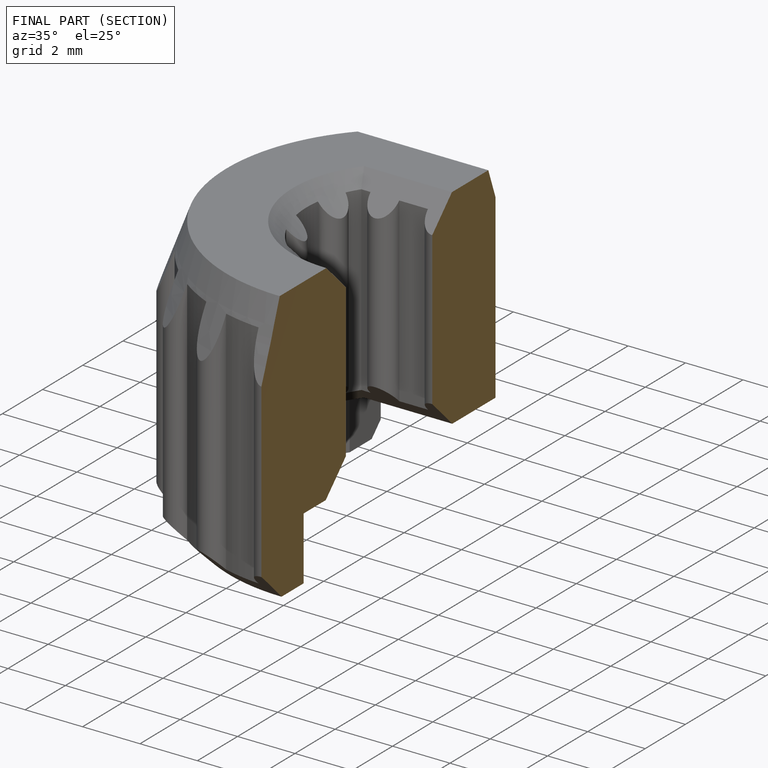
[diagram: finished part — half-section view (interior)]
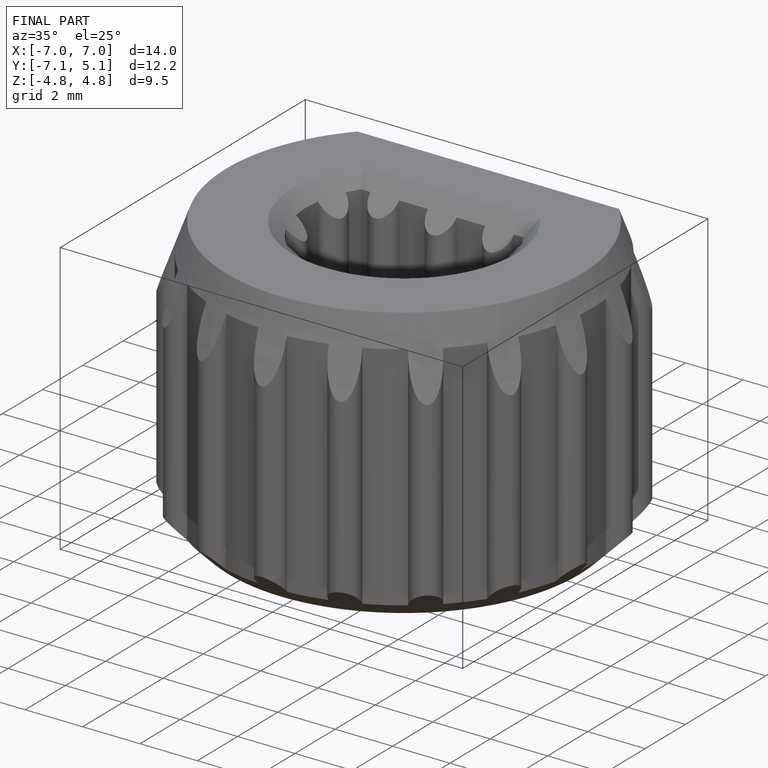
[diagram: finished part — iso view with bounding-box wireframe]
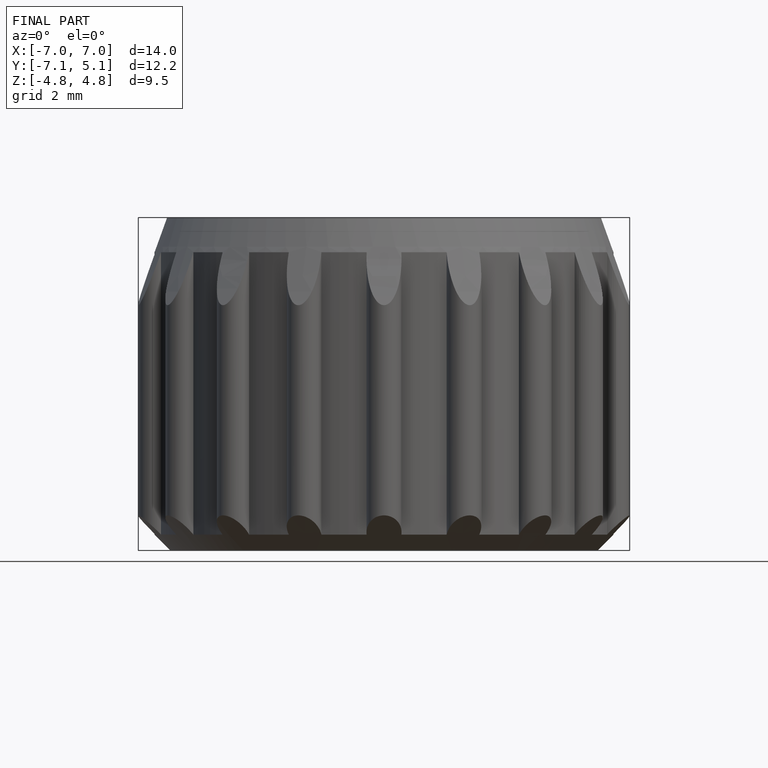
[diagram: finished part — front view with bounding-box wireframe]
